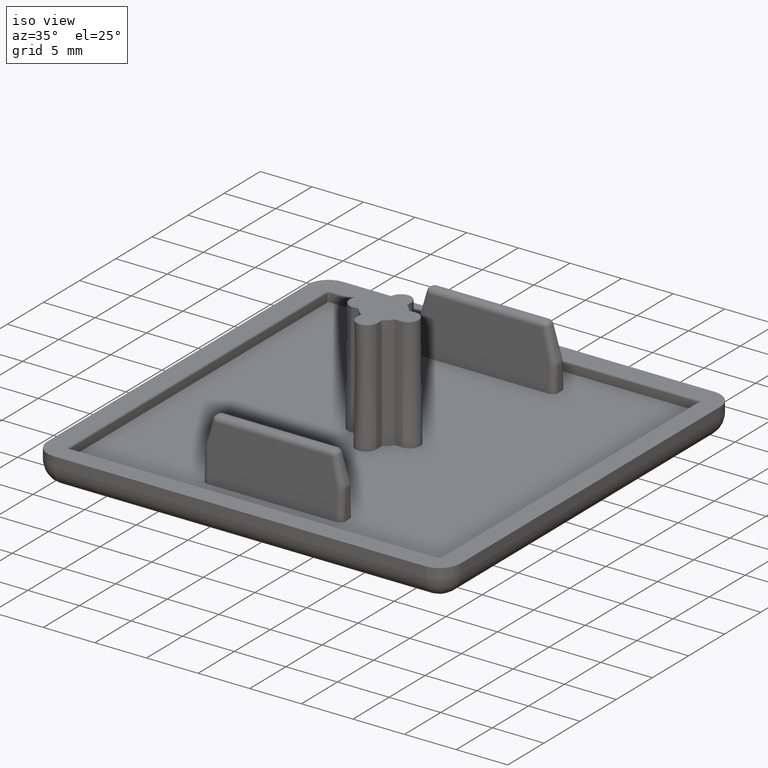
[diagram: clean part render]
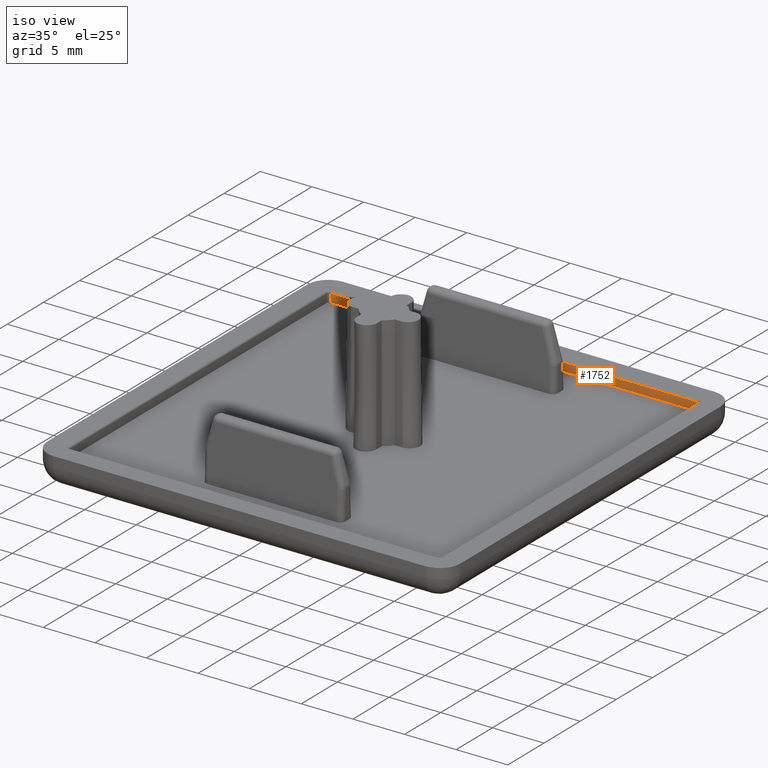
[diagram: same view with one face highlighted and labeled with its STEP entity id]
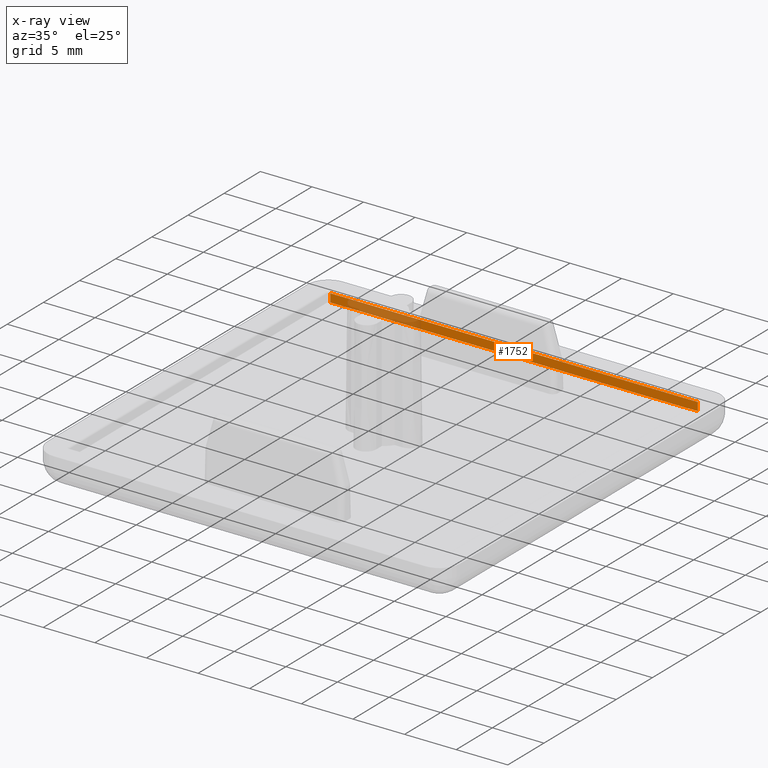
[diagram: x-ray of the same camera — body ghosted, the highlighted face saturated]
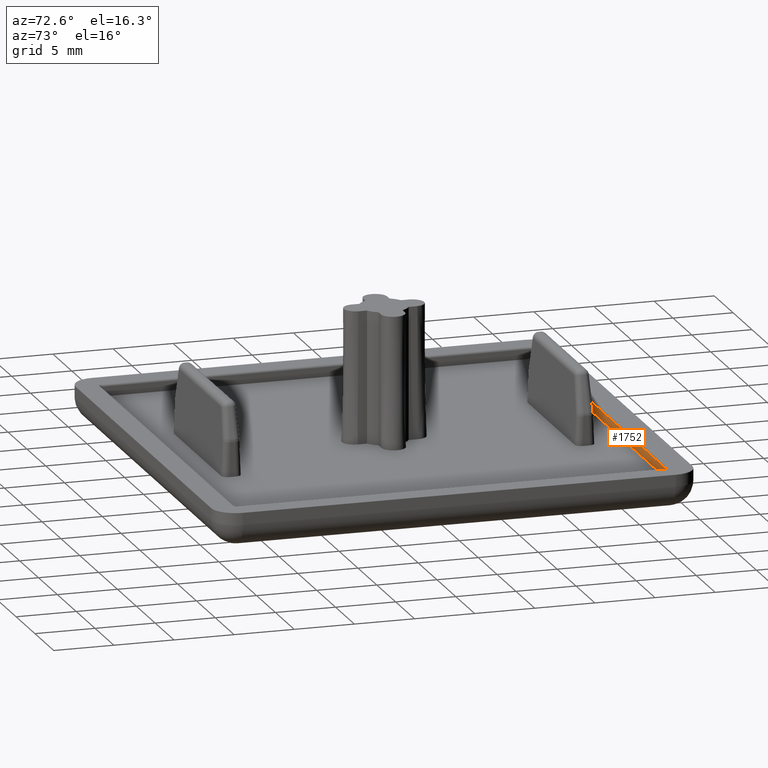
[diagram: same view with one face highlighted and labeled with its STEP entity id]
A machine part, iso view. The second image highlights one B-rep face of the part: STEP entity #1752.
The next image is the same camera in x-ray: the body ghosted, the highlighted face saturated — about 20% of this face is hidden behind the body in this view.
A second angle (auxiliary view) of the same face is appended — the face is thin or edge-on in the first view.
In plain terms, the highlighted planar face has unit normal (0, 1, 0).
Its self-contained STEP definition (entity closure, byte-faithful):
#62=PLANE('',#1956);
#167=LINE('',#3221,#303);
#170=LINE('',#3225,#306);
#176=LINE('',#3240,#312);
#179=LINE('',#3245,#315);
#303=VECTOR('',#2377,0.8);
#306=VECTOR('',#2382,35.6);
#312=VECTOR('',#2398,0.8);
#315=VECTOR('',#2405,35.6);
#504=FACE_OUTER_BOUND('',#618,.T.);
#618=EDGE_LOOP('',(#1621,#1622,#1623,#1624));
#834=VERTEX_POINT('',#3171);
#844=VERTEX_POINT('',#3193);
#851=VERTEX_POINT('',#3218);
#856=VERTEX_POINT('',#3237);
#1077=EDGE_CURVE('',#851,#844,#167,.T.);
#1080=EDGE_CURVE('',#844,#834,#170,.T.);
#1088=EDGE_CURVE('',#834,#856,#176,.T.);
#1091=EDGE_CURVE('',#851,#856,#179,.T.);
#1621=ORIENTED_EDGE('',*,*,#1077,.F.);
#1622=ORIENTED_EDGE('',*,*,#1091,.T.);
#1623=ORIENTED_EDGE('',*,*,#1088,.F.);
#1624=ORIENTED_EDGE('',*,*,#1080,.F.);
#1752=ADVANCED_FACE('',(#504),#62,.F.);
#1956=AXIS2_PLACEMENT_3D('',#3321,#2495,#2496);
#2377=DIRECTION('',(0.,0.,1.));
#2382=DIRECTION('',(1.,0.,0.));
#2398=DIRECTION('',(0.,0.,-1.));
#2405=DIRECTION('',(1.,0.,0.));
#2495=DIRECTION('center_axis',(0.,1.,0.));
#2496=DIRECTION('ref_axis',(1.,0.,0.));
#3171=CARTESIAN_POINT('',(17.8,18.,1.3));
#3193=CARTESIAN_POINT('',(-17.8,18.,1.3));
#3218=CARTESIAN_POINT('',(-17.8,18.,0.5));
#3221=CARTESIAN_POINT('',(-17.8,18.,1.5));
#3225=CARTESIAN_POINT('',(-9.,18.,1.3));
#3237=CARTESIAN_POINT('',(17.8,18.,0.5));
#3240=CARTESIAN_POINT('',(17.8,18.,1.5));
#3245=CARTESIAN_POINT('',(-18.,18.,0.5));
#3321=CARTESIAN_POINT('Origin',(-18.,18.,1.5));